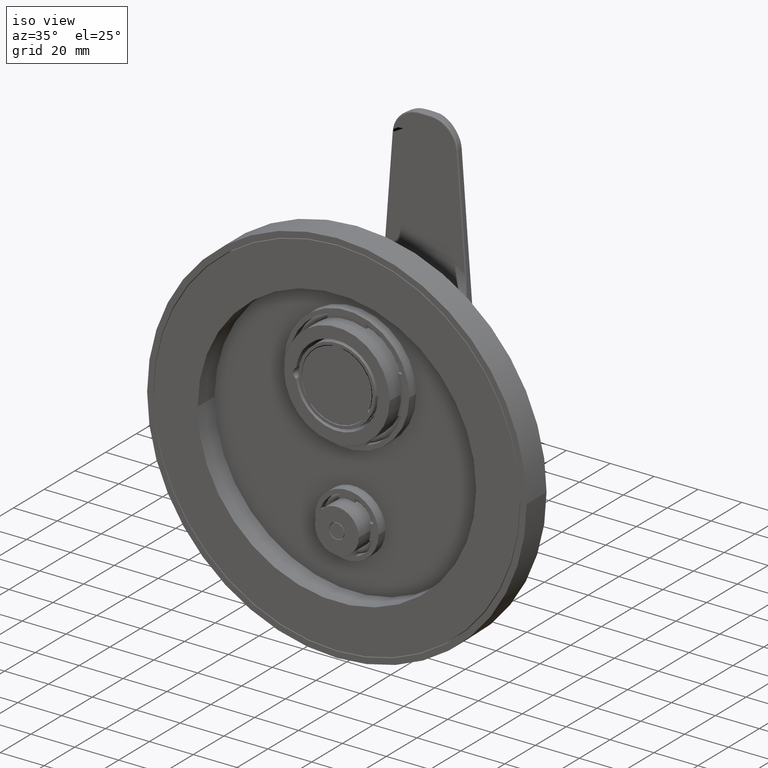
[diagram: clean part render]
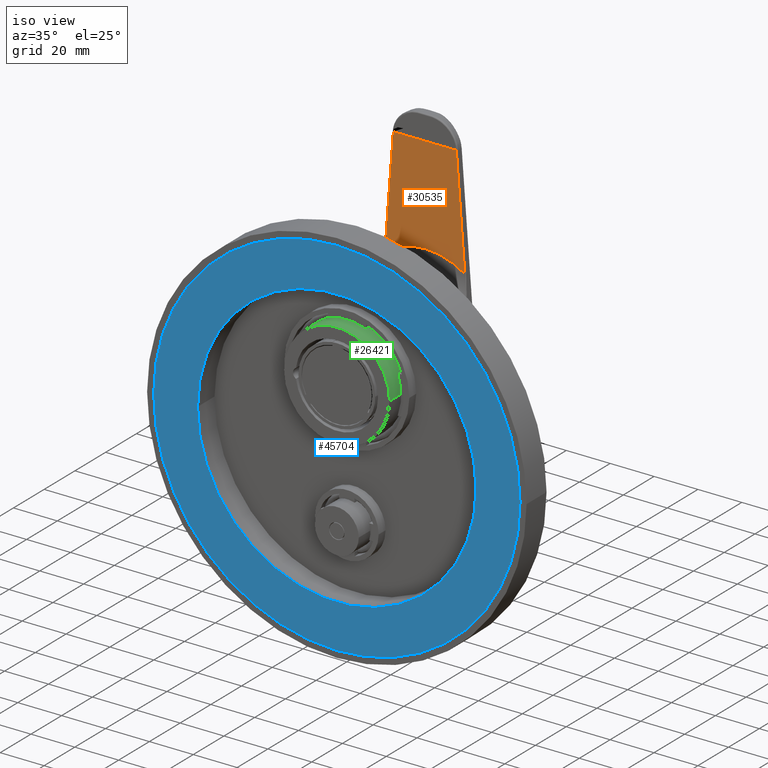
[diagram: same view with three faces highlighted in distinct colors, each labeled with its STEP entity id]
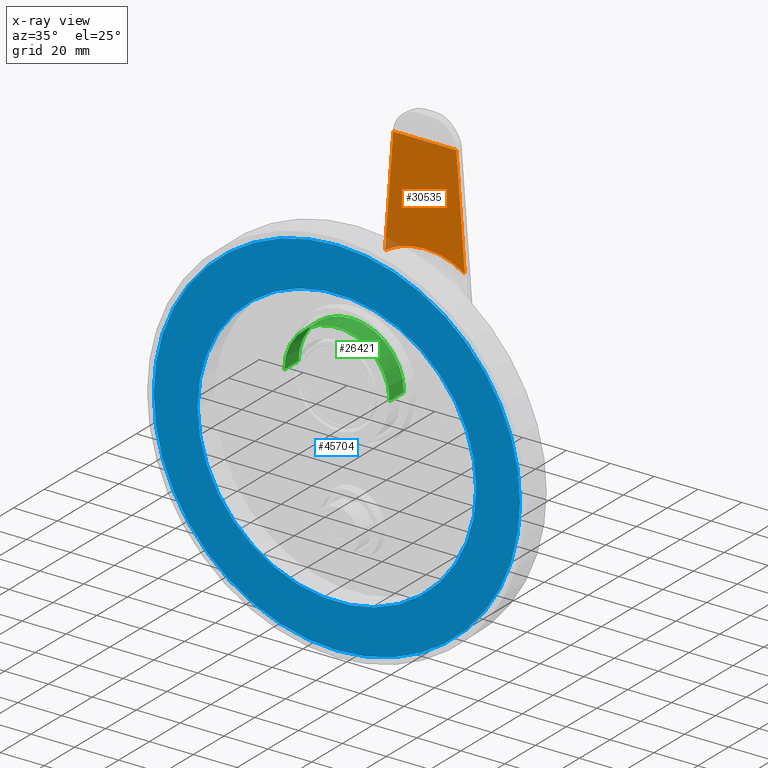
[diagram: x-ray of the same camera — body ghosted, the three highlighted faces saturated]
A machine part, iso view with three faces highlighted in distinct colors.
The next image is the same camera in x-ray (body ghosted, the three faces saturated) — at least one of them is partly hidden behind the body in this view.
Their STEP definitions:

[orange] entity #30535 — the highlighted face is a freeform B-spline surface patch.
#9553=CARTESIAN_POINT('',(-1.435267845409E1,1.108044430836E2,1.043228387690E2));
#9554=CARTESIAN_POINT('',(-1.474803317247E1,1.108044430836E2,9.914925739268E1));
#9555=CARTESIAN_POINT('',(-1.555725813365E1,1.108044430842E2,8.855980199420E1));
#9556=CARTESIAN_POINT('',(-1.682654500146E1,1.108044430813E2,7.195001150149E1));
#9557=CARTESIAN_POINT('',(-1.770992530314E1,1.108044430885E2,6.039016583012E1));
#9558=CARTESIAN_POINT('',(-1.816089682292E1,1.108044430885E2,5.448878727678E1));
#9560=CARTESIAN_POINT('',(-1.434969857312E1,1.108044430836E2,1.043609366883E2));
#9561=CARTESIAN_POINT('',(-1.435003718028E1,1.108044430836E2,1.043567048777E2));
#9562=CARTESIAN_POINT('',(-1.435070939236E1,1.108044430836E2,1.043482403961E2));
#9563=CARTESIAN_POINT('',(-1.435170269076E1,1.108044430836E2,1.043355410848E2));
#9564=CARTESIAN_POINT('',(-1.435235487041E1,1.108044430836E2,1.043270731610E2));
#9565=CARTESIAN_POINT('',(-1.435267845409E1,1.108044430836E2,1.043228387690E2));
#9567=DIRECTION('',(-1.E0,0.E0,0.E0));
#9568=VECTOR('',#9567,1.101957115031E1);
#9569=CARTESIAN_POINT('',(-3.330127422814E0,1.108044430836E2,1.043609366883E2));
#9570=LINE('',#9569,#9568);
#9571=DIRECTION('',(-1.E0,0.E0,0.E0));
#9572=VECTOR('',#9571,6.660254846281E0);
#9573=CARTESIAN_POINT('',(3.330127423467E0,1.108044430836E2,1.043609366883E2));
#9574=LINE('',#9573,#9572);
#9575=DIRECTION('',(1.E0,0.E0,0.E0));
#9576=VECTOR('',#9575,1.101957115031E1);
#9577=CARTESIAN_POINT('',(3.330127423467E0,1.108044430836E2,1.043609366883E2));
#9578=LINE('',#9577,#9576);
#9579=CARTESIAN_POINT('',(1.435267845475E1,1.108044430836E2,1.043228387690E2));
#9580=CARTESIAN_POINT('',(1.435235487107E1,1.108044430836E2,1.043270731609E2));
#9581=CARTESIAN_POINT('',(1.435170269082E1,1.108044430836E2,1.043355410845E2));
#9582=CARTESIAN_POINT('',(1.435070939252E1,1.108044430836E2,1.043482403961E2));
#9583=CARTESIAN_POINT('',(1.435003718091E1,1.108044430836E2,1.043567048778E2));
#9584=CARTESIAN_POINT('',(1.434969857377E1,1.108044430836E2,1.043609366883E2));
#9586=CARTESIAN_POINT('',(1.816089693611E1,1.108044430895E2,5.448878590131E1));
#9587=CARTESIAN_POINT('',(1.771094431303E1,1.108044430895E2,6.037683125089E1));
#9588=CARTESIAN_POINT('',(1.682892177009E1,1.108044430808E2,7.191890925363E1));
#9589=CARTESIAN_POINT('',(1.555955238911E1,1.108044430844E2,8.852977956552E1));
#9590=CARTESIAN_POINT('',(1.474901609131E1,1.108044430836E2,9.913639500107E1));
#9591=CARTESIAN_POINT('',(1.435267845475E1,1.108044430836E2,1.043228387690E2));
#9593=CARTESIAN_POINT('',(9.152978796779E-4,1.108044430836E2,5.999999978172E1));
#9594=CARTESIAN_POINT('',(5.260479678284E-1,1.108044430836E2,5.999999192860E1));
#9595=CARTESIAN_POINT('',(2.518765218763E0,1.108044430835E2,5.995190151982E1));
#9596=CARTESIAN_POINT('',(5.949085210327E0,1.108044430847E2,5.955360980398E1));
#9597=CARTESIAN_POINT('',(1.017786317347E1,1.108044430794E2,5.847535674535E1));
#9598=CARTESIAN_POINT('',(1.418096486110E1,1.108044430987E2,5.686638912936E1));
#9599=CARTESIAN_POINT('',(1.677654437992E1,1.108044430493E2,5.540401298876E1));
#9600=CARTESIAN_POINT('',(1.806059199648E1,1.108044430895E2,5.455584082866E1));
#9601=CARTESIAN_POINT('',(1.816089693611E1,1.108044430895E2,5.448878590131E1));
#9603=CARTESIAN_POINT('',(-1.816089682292E1,1.108044430885E2,5.448878727678E1));
#9604=CARTESIAN_POINT('',(-1.807629688119E1,1.108044430885E2,5.454534306974E1));
#9605=CARTESIAN_POINT('',(-1.680971302500E1,1.108044430497E2,5.538355699518E1));
#9606=CARTESIAN_POINT('',(-1.423533733189E1,1.108044430987E2,5.684005328090E1));
#9607=CARTESIAN_POINT('',(-1.023874369546E1,1.108044430794E2,5.845522435336E1));
#9608=CARTESIAN_POINT('',(-6.015763138850E0,1.108044430847E2,5.954106308361E1));
#9609=CARTESIAN_POINT('',(-2.564502500337E0,1.108044430835E2,5.994922984874E1));
#9610=CARTESIAN_POINT('',(-5.485886841467E-1,1.108044430836E2,
6.000002159392E1));
#9611=CARTESIAN_POINT('',(9.152978796779E-4,1.108044430836E2,5.999999978172E1));
#9630=CARTESIAN_POINT('',(-1.816089682292E1,1.108044430885E2,5.448878727678E1));
#10907=CARTESIAN_POINT('',(1.434969857377E1,1.108044430836E2,1.043609366883E2));
#17323=CARTESIAN_POINT('',(3.330127423467E0,1.108044430836E2,1.043609366883E2));
#17324=CARTESIAN_POINT('',(-3.330127422814E0,1.108044430836E2,
1.043609366883E2));
#17325=VERTEX_POINT('',#17323);
#17326=VERTEX_POINT('',#17324);
#17351=VERTEX_POINT('',#9630);
#17353=VERTEX_POINT('',#9553);
#17356=VERTEX_POINT('',#9560);
#17366=VERTEX_POINT('',#10907);
#17368=VERTEX_POINT('',#9579);
#17370=VERTEX_POINT('',#9586);
#17393=VERTEX_POINT('',#9593);
#30467=CARTESIAN_POINT('',(1.859815466679E1,1.108044430836E2,5.351590738549E1));
#30468=CARTESIAN_POINT('',(1.725624550212E1,1.108044430836E2,5.342421621865E1));
#30469=CARTESIAN_POINT('',(1.313863592365E1,1.108044430836E2,5.317331499189E1));
#30470=CARTESIAN_POINT('',(4.857475724480E0,1.108044430836E2,5.285662847786E1));
#30471=CARTESIAN_POINT('',(-4.857475723827E0,1.108044430836E2,
5.285662847786E1));
#30472=CARTESIAN_POINT('',(-1.313866624351E1,1.108044430836E2,
5.317331615140E1));
#30473=CARTESIAN_POINT('',(-1.725630614248E1,1.108044430836E2,
5.342421991374E1));
#30474=CARTESIAN_POINT('',(-1.859824562766E1,1.108044430836E2,
5.351591360081E1));
#30475=CARTESIAN_POINT('',(1.815637477906E1,1.108044430836E2,5.934092912387E1));
#30476=CARTESIAN_POINT('',(1.684634127576E1,1.108044430836E2,5.925974248515E1));
#30477=CARTESIAN_POINT('',(1.282654124506E1,1.108044430836E2,5.903758556476E1));
#30478=CARTESIAN_POINT('',(4.742091423267E0,1.108044430836E2,5.875717999803E1));
#30479=CARTESIAN_POINT('',(-4.742091422614E0,1.108044430836E2,
5.875717999803E1));
#30480=CARTESIAN_POINT('',(-1.282657084468E1,1.108044430836E2,
5.903758659143E1));
#30481=CARTESIAN_POINT('',(-1.684640047566E1,1.108044430836E2,
5.925974575691E1));
#30482=CARTESIAN_POINT('',(-1.815646357924E1,1.108044430836E2,
5.934093462713E1));
#30483=CARTESIAN_POINT('',(1.715218672837E1,1.108044430836E2,7.258149843729E1));
#30484=CARTESIAN_POINT('',(1.591460821710E1,1.108044430836E2,7.252418912279E1));
#30485=CARTESIAN_POINT('',(1.211713424027E1,1.108044430836E2,7.236736946604E1));
#30486=CARTESIAN_POINT('',(4.479817065074E0,1.108044430836E2,7.216943232930E1));
#30487=CARTESIAN_POINT('',(-4.479817064421E0,1.108044430836E2,
7.216943232930E1));
#30488=CARTESIAN_POINT('',(-1.211716220276E1,1.108044430836E2,
7.236737019076E1));
#30489=CARTESIAN_POINT('',(-1.591466414275E1,1.108044430836E2,
7.252419143232E1));
#30490=CARTESIAN_POINT('',(-1.715227061717E1,1.108044430836E2,
7.258150232202E1));
#30491=CARTESIAN_POINT('',(1.584159082890E1,1.108044430836E2,8.986216199118E1));
#30492=CARTESIAN_POINT('',(1.469857549770E1,1.108044430836E2,8.983601568764E1));
#30493=CARTESIAN_POINT('',(1.119126591222E1,1.108044430836E2,8.976446965044E1));
#30494=CARTESIAN_POINT('',(4.137514945319E0,1.108044430836E2,8.967416453154E1));
#30495=CARTESIAN_POINT('',(-4.137514944666E0,1.108044430836E2,
8.967416453154E1));
#30496=CARTESIAN_POINT('',(-1.119129173806E1,1.108044430836E2,
8.976446998108E1));
#30497=CARTESIAN_POINT('',(-1.469862715003E1,1.108044430836E2,
8.983601674132E1));
#30498=CARTESIAN_POINT('',(-1.584166830772E1,1.108044430836E2,
8.986216376352E1));
#30499=CARTESIAN_POINT('',(1.497277481715E1,1.108044430836E2,1.013178038067E2));
#30500=CARTESIAN_POINT('',(1.389244700466E1,1.108044430836E2,1.013123159860E2));
#30501=CARTESIAN_POINT('',(1.057749226277E1,1.108044430836E2,1.012972992620E2));
#30502=CARTESIAN_POINT('',(3.910597126777E0,1.108044430836E2,1.012783452136E2));
#30503=CARTESIAN_POINT('',(-3.910597126124E0,1.108044430836E2,
1.012783452136E2));
#30504=CARTESIAN_POINT('',(-1.057751667218E1,1.108044430836E2,
1.012972993314E2));
#30505=CARTESIAN_POINT('',(-1.389249582413E1,1.108044430836E2,
1.013123162072E2));
#30506=CARTESIAN_POINT('',(-1.497284804669E1,1.108044430836E2,
1.013178041787E2));
#30507=CARTESIAN_POINT('',(1.466636696837E1,1.108044430836E2,1.053578980472E2));
#30508=CARTESIAN_POINT('',(1.360814734391E1,1.108044430836E2,1.053596959132E2));
#30509=CARTESIAN_POINT('',(1.036103093951E1,1.108044430836E2,1.053646155451E2));
#30510=CARTESIAN_POINT('',(3.830569365215E0,1.108044430836E2,1.053708250846E2));
#30511=CARTESIAN_POINT('',(-3.830569364561E0,1.108044430836E2,
1.053708250846E2));
#30512=CARTESIAN_POINT('',(-1.036105484939E1,1.108044430836E2,
1.053646155224E2));
#30513=CARTESIAN_POINT('',(-1.360819516431E1,1.108044430836E2,
1.053596958407E2));
#30514=CARTESIAN_POINT('',(-1.466643869930E1,1.108044430836E2,
1.053578979253E2));
#30515=B_SPLINE_SURFACE_WITH_KNOTS('',3,3,((#30467,#30468,#30469,#30470,#30471,
#30472,#30473,#30474),(#30475,#30476,#30477,#30478,#30479,#30480,#30481,#30482),
(#30483,#30484,#30485,#30486,#30487,#30488,#30489,#30490),(#30491,#30492,#30493,
#30494,#30495,#30496,#30497,#30498),(#30499,#30500,#30501,#30502,#30503,#30504,
#30505,#30506),(#30507,#30508,#30509,#30510,#30511,#30512,#30513,#30514)),
.UNSPECIFIED.,.F.,.F.,.F.,(4,1,1,4),(4,1,1,1,1,4),(4.921078411591E-1,
6.666666666667E-1,8.888888888889E-1,1.009958669781E0),(3.678034000248E-3,
1.111111111111E-1,3.333333333333E-1,6.666666666667E-1,8.888888888889E-1,
9.963243934557E-1),.UNSPECIFIED.);
#30517=ORIENTED_EDGE('',*,*,#30516,.F.);
#30519=ORIENTED_EDGE('',*,*,#30518,.F.);
#30521=ORIENTED_EDGE('',*,*,#30520,.F.);
#30523=ORIENTED_EDGE('',*,*,#30522,.F.);
#30525=ORIENTED_EDGE('',*,*,#30524,.T.);
#30527=ORIENTED_EDGE('',*,*,#30526,.F.);
#30528=ORIENTED_EDGE('',*,*,#30450,.F.);
#30530=ORIENTED_EDGE('',*,*,#30529,.F.);
#30532=ORIENTED_EDGE('',*,*,#30531,.F.);
#30533=EDGE_LOOP('',(#30517,#30519,#30521,#30523,#30525,#30527,#30528,#30530,
#30532));
#30534=FACE_OUTER_BOUND('',#30533,.F.);
#30535=ADVANCED_FACE('',(#30534),#30515,.T.);
#9559=B_SPLINE_CURVE_WITH_KNOTS('',3,(#9553,#9554,#9555,#9556,#9557,#9558),
.UNSPECIFIED.,.F.,.F.,(4,1,1,4),(0.E0,3.333333333333E-1,6.666666666667E-1,1.E0),
.UNSPECIFIED.);
#9566=B_SPLINE_CURVE_WITH_KNOTS('',3,(#9560,#9561,#9562,#9563,#9564,#9565),
.UNSPECIFIED.,.F.,.F.,(4,1,1,4),(0.E0,3.333333333333E-1,6.666666666667E-1,1.E0),
.UNSPECIFIED.);
#9585=B_SPLINE_CURVE_WITH_KNOTS('',3,(#9579,#9580,#9581,#9582,#9583,#9584),
.UNSPECIFIED.,.F.,.F.,(4,1,1,4),(0.E0,3.333333333333E-1,6.666666666667E-1,1.E0),
.UNSPECIFIED.);
#9592=B_SPLINE_CURVE_WITH_KNOTS('',3,(#9586,#9587,#9588,#9589,#9590,#9591),
.UNSPECIFIED.,.F.,.F.,(4,1,1,4),(0.E0,3.333333333333E-1,6.666666666667E-1,1.E0),
.UNSPECIFIED.);
#9602=B_SPLINE_CURVE_WITH_KNOTS('',3,(#9593,#9594,#9595,#9596,#9597,#9598,#9599,
#9600,#9601),.UNSPECIFIED.,.F.,.F.,(4,1,1,1,1,1,4),(0.E0,8.181442425915E-2,
3.104609963107E-1,5.368097950473E-1,7.602301149145E-1,9.812011740475E-1,1.E0),
.UNSPECIFIED.);
#9612=B_SPLINE_CURVE_WITH_KNOTS('',3,(#9603,#9604,#9605,#9606,#9607,#9608,#9609,
#9610,#9611),.UNSPECIFIED.,.F.,.F.,(4,1,1,1,1,1,4),(0.E0,1.585392549784E-2,
2.366231201787E-1,4.598277603233E-1,6.859553273049E-1,9.143967184336E-1,1.E0),
.UNSPECIFIED.);
#30450=EDGE_CURVE('',#17370,#17368,#9592,.T.);
#30516=EDGE_CURVE('',#17353,#17351,#9559,.T.);
#30518=EDGE_CURVE('',#17356,#17353,#9566,.T.);
#30520=EDGE_CURVE('',#17326,#17356,#9570,.T.);
#30522=EDGE_CURVE('',#17325,#17326,#9574,.T.);
#30524=EDGE_CURVE('',#17325,#17366,#9578,.T.);
#30526=EDGE_CURVE('',#17368,#17366,#9585,.T.);
#30529=EDGE_CURVE('',#17393,#17370,#9602,.T.);
#30531=EDGE_CURVE('',#17351,#17393,#9612,.T.);

[blue] entity #45704 — the highlighted planar face has unit normal (0, -1, 0).
#44608=CARTESIAN_POINT('',(0.E0,5.35E1,-2.5E-1));
#44609=DIRECTION('',(0.E0,1.E0,0.E0));
#44610=DIRECTION('',(1.E0,0.E0,0.E0));
#44611=AXIS2_PLACEMENT_3D('',#44608,#44609,#44610);
#44617=CARTESIAN_POINT('',(0.E0,5.35E1,-2.5E-1));
#44618=DIRECTION('',(0.E0,1.E0,0.E0));
#44619=DIRECTION('',(-1.E0,0.E0,0.E0));
#44620=AXIS2_PLACEMENT_3D('',#44617,#44618,#44619);
#44626=CARTESIAN_POINT('',(0.E0,5.35E1,-2.5E-1));
#44627=DIRECTION('',(0.E0,1.E0,0.E0));
#44628=DIRECTION('',(-1.E0,0.E0,0.E0));
#44629=AXIS2_PLACEMENT_3D('',#44626,#44627,#44628);
#44665=CARTESIAN_POINT('',(0.E0,5.35E1,-2.5E-1));
#44666=DIRECTION('',(0.E0,1.E0,0.E0));
#44667=DIRECTION('',(1.E0,0.E0,0.E0));
#44668=AXIS2_PLACEMENT_3D('',#44665,#44666,#44667);
#45286=CARTESIAN_POINT('',(-6.35E1,5.35E1,-2.5E-1));
#45287=CARTESIAN_POINT('',(6.35E1,5.35E1,-2.5E-1));
#45288=VERTEX_POINT('',#45286);
#45289=VERTEX_POINT('',#45287);
#45290=CARTESIAN_POINT('',(8.35E1,5.35E1,-2.5E-1));
#45291=CARTESIAN_POINT('',(-8.35E1,5.35E1,-2.5E-1));
#45292=VERTEX_POINT('',#45290);
#45293=VERTEX_POINT('',#45291);
#45689=CARTESIAN_POINT('',(0.E0,5.35E1,-2.5E-1));
#45690=DIRECTION('',(0.E0,-1.E0,0.E0));
#45691=DIRECTION('',(-1.E0,0.E0,0.E0));
#45692=AXIS2_PLACEMENT_3D('',#45689,#45690,#45691);
#45693=PLANE('',#45692);
#45694=ORIENTED_EDGE('',*,*,#45655,.T.);
#45695=ORIENTED_EDGE('',*,*,#45676,.T.);
#45696=EDGE_LOOP('',(#45694,#45695));
#45697=FACE_OUTER_BOUND('',#45696,.F.);
#45699=ORIENTED_EDGE('',*,*,#45698,.F.);
#45701=ORIENTED_EDGE('',*,*,#45700,.F.);
#45702=EDGE_LOOP('',(#45699,#45701));
#45703=FACE_BOUND('',#45702,.F.);
#45704=ADVANCED_FACE('',(#45697,#45703),#45693,.T.);
#44612=CIRCLE('',#44611,8.35E1);
#44621=CIRCLE('',#44620,8.35E1);
#44630=CIRCLE('',#44629,6.35E1);
#44669=CIRCLE('',#44668,6.35E1);
#45655=EDGE_CURVE('',#45292,#45293,#44612,.T.);
#45676=EDGE_CURVE('',#45293,#45292,#44621,.T.);
#45698=EDGE_CURVE('',#45288,#45289,#44630,.T.);
#45700=EDGE_CURVE('',#45289,#45288,#44669,.T.);

[green] entity #26421 — the highlighted cylindrical surface (partial cylindrical patch) has radius 24.05 mm, axis along (0, -1, 0).
#7070=CARTESIAN_POINT('',(0.E0,6.29E1,2.55E1));
#7071=DIRECTION('',(0.E0,-1.E0,0.E0));
#7072=DIRECTION('',(1.E0,0.E0,0.E0));
#7073=AXIS2_PLACEMENT_3D('',#7070,#7071,#7072);
#7075=CARTESIAN_POINT('',(0.E0,5.35E1,2.55E1));
#7076=DIRECTION('',(0.E0,-1.E0,0.E0));
#7077=DIRECTION('',(1.E0,0.E0,0.E0));
#7078=AXIS2_PLACEMENT_3D('',#7075,#7076,#7077);
#7080=CARTESIAN_POINT('',(0.E0,6.29E1,2.55E1));
#7081=DIRECTION('',(0.E0,-1.E0,0.E0));
#7082=DIRECTION('',(0.E0,0.E0,1.E0));
#7083=AXIS2_PLACEMENT_3D('',#7080,#7081,#7082);
#7105=DIRECTION('',(0.E0,1.E0,0.E0));
#7106=VECTOR('',#7105,9.4E0);
#7107=CARTESIAN_POINT('',(-2.405E1,5.35E1,2.55E1));
#7108=LINE('',#7107,#7106);
#7114=DIRECTION('',(0.E0,1.E0,0.E0));
#7115=VECTOR('',#7114,9.4E0);
#7116=CARTESIAN_POINT('',(2.405E1,5.35E1,2.55E1));
#7117=LINE('',#7116,#7115);
#14774=CARTESIAN_POINT('',(2.405E1,5.35E1,2.55E1));
#14775=CARTESIAN_POINT('',(-2.405E1,5.35E1,2.55E1));
#14776=VERTEX_POINT('',#14774);
#14777=VERTEX_POINT('',#14775);
#17311=CARTESIAN_POINT('',(2.405E1,6.29E1,2.55E1));
#17312=CARTESIAN_POINT('',(0.E0,6.29E1,4.955E1));
#17313=VERTEX_POINT('',#17311);
#17314=VERTEX_POINT('',#17312);
#17317=CARTESIAN_POINT('',(-2.405E1,6.29E1,2.55E1));
#17318=VERTEX_POINT('',#17317);
#26405=CARTESIAN_POINT('',(0.E0,8.23E1,2.55E1));
#26406=DIRECTION('',(0.E0,-1.E0,0.E0));
#26407=DIRECTION('',(-1.E0,0.E0,0.E0));
#26408=AXIS2_PLACEMENT_3D('',#26405,#26406,#26407);
#26409=CYLINDRICAL_SURFACE('',#26408,2.405E1);
#26411=ORIENTED_EDGE('',*,*,#26410,.F.);
#26413=ORIENTED_EDGE('',*,*,#26412,.F.);
#26414=ORIENTED_EDGE('',*,*,#26384,.T.);
#26416=ORIENTED_EDGE('',*,*,#26415,.T.);
#26418=ORIENTED_EDGE('',*,*,#26417,.F.);
#26419=EDGE_LOOP('',(#26411,#26413,#26414,#26416,#26418));
#26420=FACE_OUTER_BOUND('',#26419,.F.);
#26421=ADVANCED_FACE('',(#26420),#26409,.T.);
#7074=CIRCLE('',#7073,2.405E1);
#7079=CIRCLE('',#7078,2.405E1);
#7084=CIRCLE('',#7083,2.405E1);
#26384=EDGE_CURVE('',#14776,#14777,#7079,.T.);
#26410=EDGE_CURVE('',#17313,#17314,#7074,.T.);
#26412=EDGE_CURVE('',#14776,#17313,#7117,.T.);
#26415=EDGE_CURVE('',#14777,#17318,#7108,.T.);
#26417=EDGE_CURVE('',#17314,#17318,#7084,.T.);